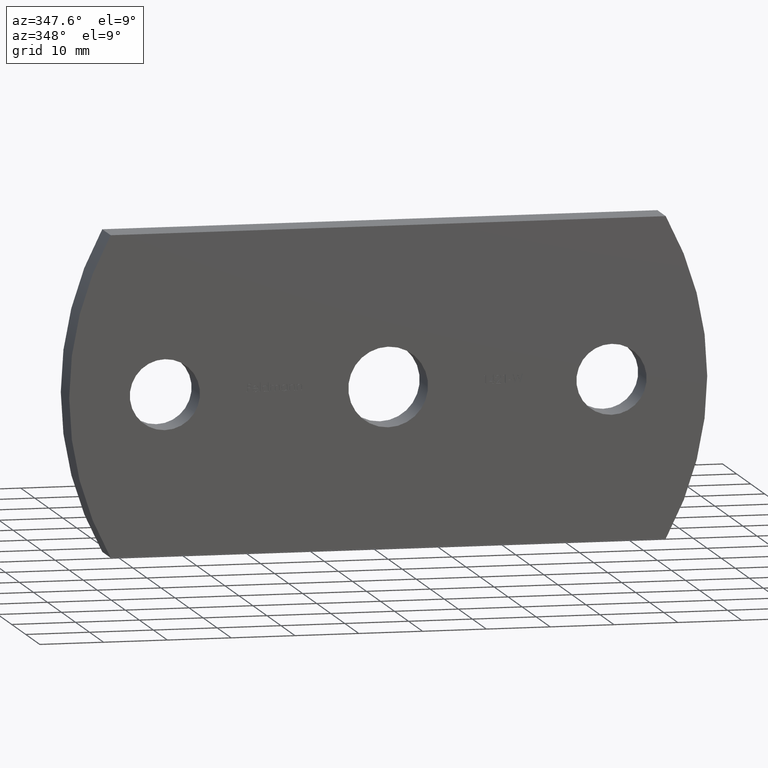
[diagram: clean part render]
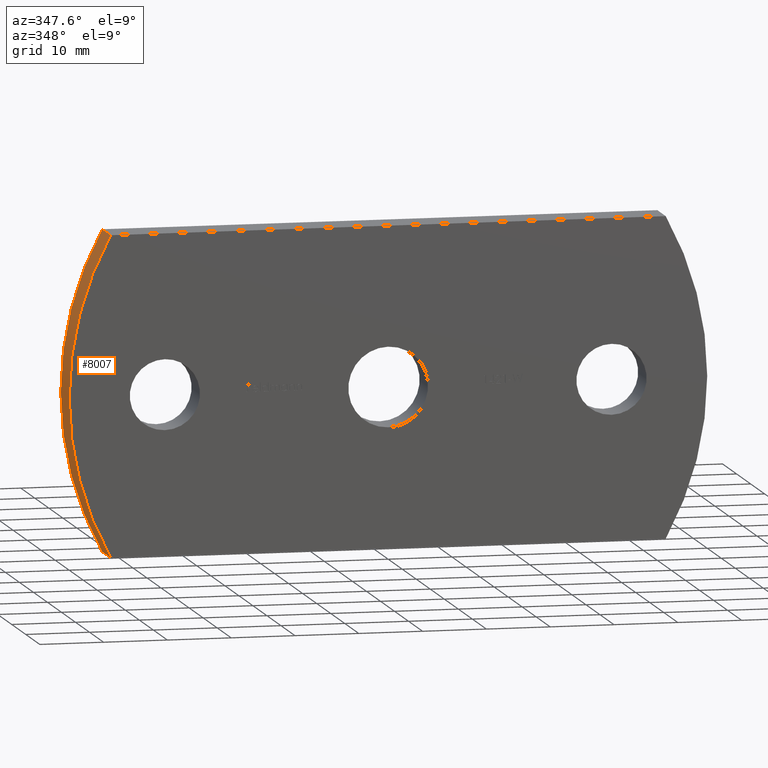
[diagram: same view with one face highlighted and labeled with its STEP entity id]
A machine part, auxiliary view. The second image highlights one B-rep face of the part: STEP entity #8007.
In plain terms, the highlighted cylindrical surface (partial cylindrical patch) has radius 51.3269 mm, axis along (-0, -1, -0).
Its self-contained STEP definition (entity closure, byte-faithful):
#355 = DIRECTION ( 'NONE',  ( -0.0000000000000000000, -1.000000000000000000, -0.0000000000000000000 ) ) ;
#652 = ORIENTED_EDGE ( 'NONE', *, *, #1982, .F. ) ;
#865 = CARTESIAN_POINT ( 'NONE',  ( -43.49999999999997200, 6.000000000000000000, 25.00000000000000000 ) ) ;
#967 = LINE ( 'NONE', #865, #2322 ) ;
#1272 = AXIS2_PLACEMENT_3D ( 'NONE', #5341, #4030, #3395 ) ;
#1828 = CARTESIAN_POINT ( 'NONE',  ( -43.49999999999997200, 0.0000000000000000000, 25.00000000000000000 ) ) ;
#1900 = CIRCLE ( 'NONE', #1272, 51.32692307692285300 ) ;
#1982 = EDGE_CURVE ( 'NONE', #6192, #4468, #967, .T. ) ;
#2261 = EDGE_CURVE ( 'NONE', #3364, #6192, #1900, .T. ) ;
#2307 = CARTESIAN_POINT ( 'NONE',  ( -43.49999999999995000, 6.000000000000000000, -25.00000000000003900 ) ) ;
#2322 = VECTOR ( 'NONE', #355, 1000.000000000000000 ) ;
#2363 = AXIS2_PLACEMENT_3D ( 'NONE', #7655, #3097, #8327 ) ;
#2379 = LINE ( 'NONE', #2307, #2685 ) ;
#2492 = CARTESIAN_POINT ( 'NONE',  ( -43.49999999999995000, 0.0000000000000000000, -25.00000000000003900 ) ) ;
#2685 = VECTOR ( 'NONE', #5610, 1000.000000000000000 ) ;
#3079 = CYLINDRICAL_SURFACE ( 'NONE', #2363, 51.32692307692285300 ) ;
#3097 = DIRECTION ( 'NONE',  ( -0.0000000000000000000, -1.000000000000000000, -0.0000000000000000000 ) ) ;
#3352 = EDGE_CURVE ( 'NONE', #4439, #4468, #4325, .T. ) ;
#3364 = VERTEX_POINT ( 'NONE', #5339 ) ;
#3395 = DIRECTION ( 'NONE',  ( 0.0000000000000000000, 0.0000000000000000000, 1.000000000000000000 ) ) ;
#3780 = FACE_OUTER_BOUND ( 'NONE', #7837, .T. ) ;
#3910 = ORIENTED_EDGE ( 'NONE', *, *, #2261, .F. ) ;
#4030 = DIRECTION ( 'NONE',  ( 0.0000000000000000000, 1.000000000000000000, 0.0000000000000000000 ) ) ;
#4325 = CIRCLE ( 'NONE', #7792, 51.32692307692285300 ) ;
#4439 = VERTEX_POINT ( 'NONE', #2492 ) ;
#4468 = VERTEX_POINT ( 'NONE', #1828 ) ;
#5311 = DIRECTION ( 'NONE',  ( 0.0000000000000000000, 1.000000000000000000, 0.0000000000000000000 ) ) ;
#5339 = CARTESIAN_POINT ( 'NONE',  ( -43.49999999999995000, 6.000000000000000000, -25.00000000000003900 ) ) ;
#5341 = CARTESIAN_POINT ( 'NONE',  ( 1.326923076922850600, 6.000000000000000000, 0.0000000000000000000 ) ) ;
#5402 = ORIENTED_EDGE ( 'NONE', *, *, #3352, .T. ) ;
#5610 = DIRECTION ( 'NONE',  ( -0.0000000000000000000, -1.000000000000000000, -0.0000000000000000000 ) ) ;
#6154 = EDGE_CURVE ( 'NONE', #3364, #4439, #2379, .T. ) ;
#6192 = VERTEX_POINT ( 'NONE', #8363 ) ;
#6618 = ORIENTED_EDGE ( 'NONE', *, *, #6154, .T. ) ;
#7655 = CARTESIAN_POINT ( 'NONE',  ( 1.326923076922850600, 6.000000000000000000, 0.0000000000000000000 ) ) ;
#7792 = AXIS2_PLACEMENT_3D ( 'NONE', #7882, #5311, #7913 ) ;
#7837 = EDGE_LOOP ( 'NONE', ( #5402, #652, #3910, #6618 ) ) ;
#7882 = CARTESIAN_POINT ( 'NONE',  ( 1.326923076922850600, 0.0000000000000000000, 0.0000000000000000000 ) ) ;
#7913 = DIRECTION ( 'NONE',  ( 0.0000000000000000000, 0.0000000000000000000, 1.000000000000000000 ) ) ;
#8007 = ADVANCED_FACE ( 'NONE', ( #3780 ), #3079, .T. ) ;
#8327 = DIRECTION ( 'NONE',  ( 0.0000000000000000000, 0.0000000000000000000, -1.000000000000000000 ) ) ;
#8363 = CARTESIAN_POINT ( 'NONE',  ( -43.49999999999997200, 6.000000000000000000, 25.00000000000000000 ) ) ;